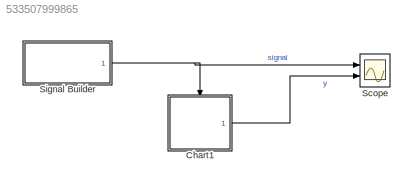
MODEL slx_533507999865
KIND model
CONFIG AbsTol = auto
CONFIG EnableMultiTasking = off
CONFIG FixedStep = 0.1
CONFIG MaxStep = 1
CONFIG MinStep = auto
CONFIG RelTol = 1e-3
CONFIG SampleTimeConstraint = Unconstrained
CONFIG Solver = FixedStepAuto
CONFIG SolverName = FixedStepAuto
CONFIG StartTime = 0.0
CONFIG StopTime = 8.0
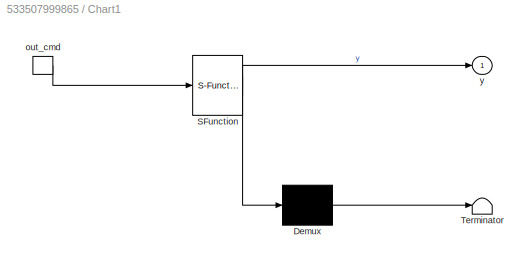
BLOCK [SubSystem] Chart1
  ErrorFcn = Stateflow.Translate.translate
  PermitHierarchicalResolution = ExplicitOnly
  Ports = [0, 1, 0, 1]
  RequestExecContextInheritance = off
  SFBlockType = Chart
  TreatAsAtomicUnit = on
BLOCK [Demux] Chart1/ Demux 
  Outputs = 1
  Ports = [1, 1]
BLOCK [S-Function] Chart1/ SFunction 
  EnableBusSupport = on
  FunctionName = sf_sfun
  PortCounts = [1 2]
  Ports = [1, 2]
  SFcnIsStateOwnerBlock = off
  SFunctionDeploymentMode = off
  Tag = Stateflow S-Function TriggerEdge7_2018a 1
BLOCK [Terminator] Chart1/ Terminator 
BLOCK [TriggerPort] Chart1/out_cmd
  Ports = [0, 1]
  ShowOutputPort = on
  StatesWhenEnabling = held
  TriggerType = falling
  VariantControl = (inherit)
BLOCK [Outport] Chart1/y
BLOCK [Scope] Scope
  Floating = off
  NumInputPorts = 2
  Ports = [2]
  ScopeSpecificationString = Simulink.scopes.TimeScopeBlockCfg('CurrentConfiguration', extmgr.ConfigurationSet(extmgr.Configuration('Core','General UI',true),extmgr.Configuration('Core','Source UI',true),extmgr.Configuration('Sources','WiredSimulink',true),extmgr.Configuration('Visuals','Time Domain',true,'SerializedDisplays',{struct('MinYLimReal','-0.125','MaxYLimReal','1.125','YLabelReal','','MinYLimMag','0.00000','MaxYLimM...<+1992ch>
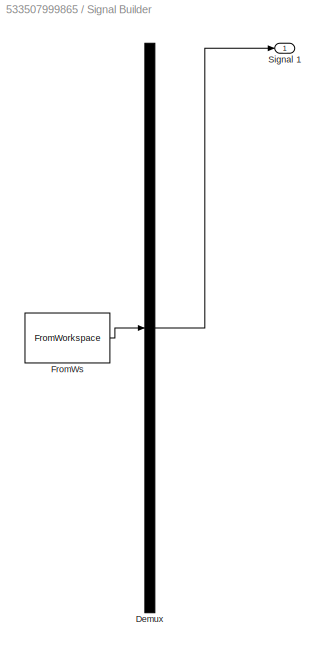
BLOCK [SubSystem] Signal Builder
  ClipboardFcn = sigbuilder_block('clipboard');
  CloseFcn = sigbuilder_block('close');
  ContinueFcn = sigbuilder_block('continue');
  CopyFcn = sigbuilder_block('copy');
  DeleteFcn = sigbuilder_block('delete');
  LoadFcn = sigbuilder_block('load');
  MaskHideContents = on
  ModelCloseFcn = sigbuilder_block('modelClose');
  NameChangeFcn = sigbuilder_block('namechange');
  OpenFcn = sigbuilder_block('open',[404 117.5 550.5 363 ]);
  PauseFcn = sigbuilder_block('pause');
  Ports = [0, 1]
  PreSaveFcn = sigbuilder_block('preSave');
  RequestExecContextInheritance = off
  StartFcn = sigbuilder_block('start');
  StopFcn = sigbuilder_block('stop');
  Tag = STV Subsys
BLOCK [Demux] Signal Builder/Demux
  DisplayOption = none
  Outputs = 1
  Ports = [1, 1]
  Tag = STV Demux
BLOCK [FromWorkspace] Signal Builder/FromWs
  Tag = STV FromWs
  VariableName = tuvar
BLOCK [Outport] Signal Builder/Signal 1
  Tag = STV Outport
LINE Chart1:1 -> Scope:2
NET Signal Builder:1 -> Chart1:trigger, Scope:1
note: NET lines group one-source signal fan-out (src -> all destinations, sorted); 1:1 wires keep LINE
CHART Chart1 states=1 transitions=1
  STATE_LABEL 'AA\ndu: y = y + 1;'
